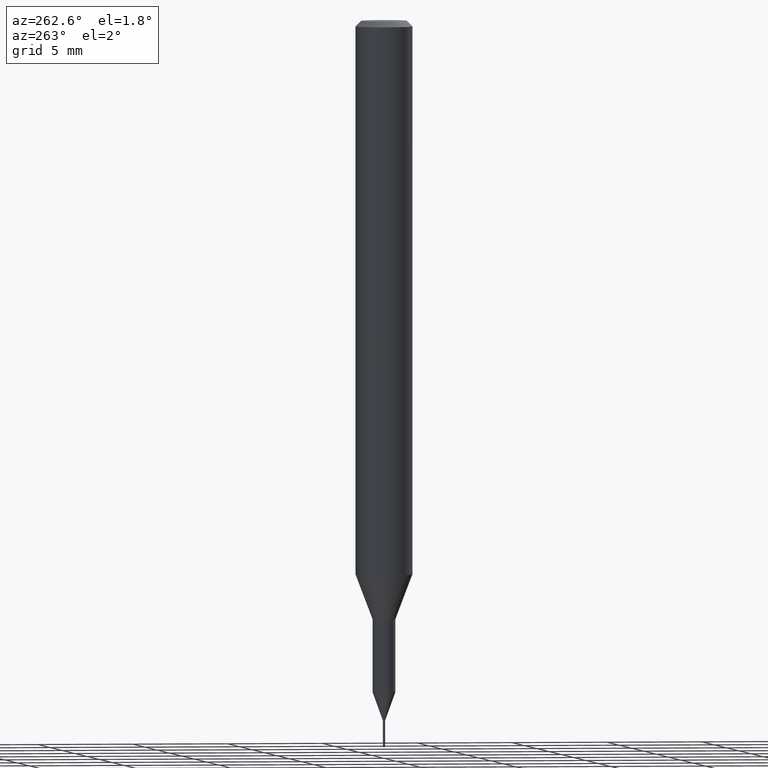
[diagram: clean part render]
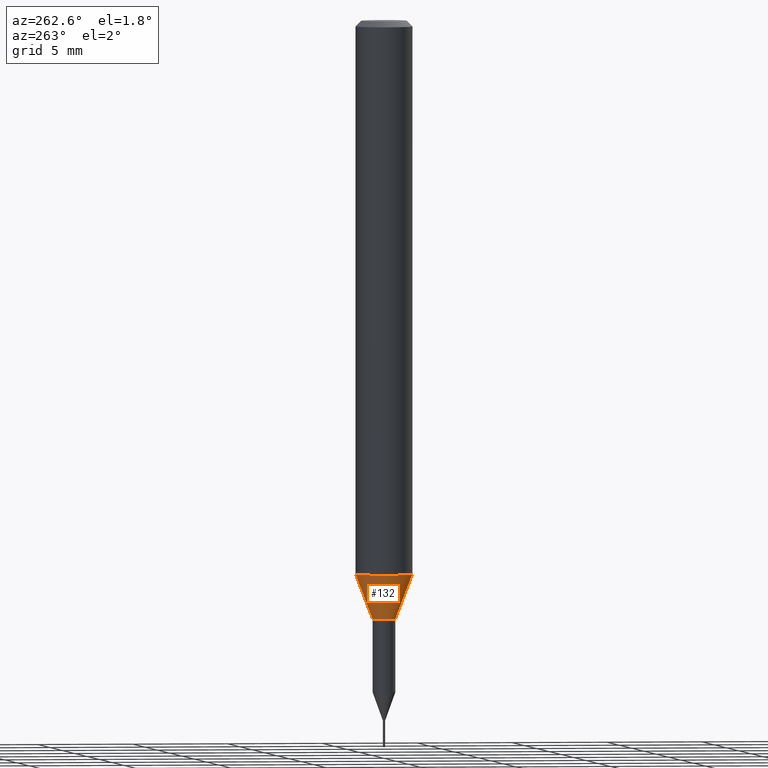
[diagram: same view with one face highlighted and labeled with its STEP entity id]
A machine part, auxiliary view. The second image highlights one B-rep face of the part: STEP entity #132.
In plain terms, the highlighted conical surface has half-angle 20.997 deg.
Its self-contained STEP definition (entity closure, byte-faithful):
#114=VERTEX_POINT('',#291);
#132=ADVANCED_FACE('',(#313),#314,.T.);
#154=VERTEX_POINT('',#338);
#162=VERTEX_POINT('',#346);
#164=VERTEX_POINT('',#348);
#170=EDGE_CURVE('',#164,#114,#355,.T.);
#208=EDGE_CURVE('',#154,#164,#400,.T.);
#216=EDGE_CURVE('',#162,#114,#409,.T.);
#224=EDGE_CURVE('',#162,#154,#417,.T.);
#291=CARTESIAN_POINT('',(0.0,0.6,-31.3));
#313=FACE_OUTER_BOUND('',#510,.T.);
#314=CONICAL_SURFACE('',#511,1.05,0.366459241971866);
#338=CARTESIAN_POINT('',(1.83690953073357E-016,-1.5,-28.955));
#346=CARTESIAN_POINT('',(7.34763812293426E-017,-0.6,-31.3));
#348=CARTESIAN_POINT('',(0.0,1.5,-28.955));
#355=LINE('',#566,#567);
#400=CIRCLE('',#625,1.5);
#409=CIRCLE('',#636,0.6);
#417=LINE('',#648,#649);
#510=EDGE_LOOP('',(#744,#745,#746,#747));
#511=AXIS2_PLACEMENT_3D('',#748,#749,#750);
#566=CARTESIAN_POINT('',(-1.2858366715135E-016,1.05,-30.1275));
#567=VECTOR('',#788,1.0);
#625=AXIS2_PLACEMENT_3D('',#863,#864,#865);
#636=AXIS2_PLACEMENT_3D('',#877,#878,#879);
#648=CARTESIAN_POINT('',(1.2858366715135E-016,-1.05,-30.1275));
#649=VECTOR('',#884,1.0);
#744=ORIENTED_EDGE('',*,*,#170,.T.);
#745=ORIENTED_EDGE('',*,*,#216,.F.);
#746=ORIENTED_EDGE('',*,*,#224,.T.);
#747=ORIENTED_EDGE('',*,*,#208,.T.);
#748=CARTESIAN_POINT('',(0.0,0.0,-30.1275));
#749=DIRECTION('',(-0.0,-0.0,1.0));
#750=DIRECTION('',(0.0,1.0,0.0));
#788=DIRECTION('',(4.38791184365088E-017,-0.358312026550805,-0.93360189140182));
#863=CARTESIAN_POINT('',(0.0,0.0,-28.955));
#864=DIRECTION('',(0.0,0.0,-1.0));
#865=DIRECTION('',(0.0,1.0,0.0));
#877=CARTESIAN_POINT('',(0.0,0.0,-31.3));
#878=DIRECTION('',(0.0,0.0,-1.0));
#879=DIRECTION('',(0.0,1.0,0.0));
#884=DIRECTION('',(4.38791184365088E-017,-0.358312026550805,0.93360189140182));